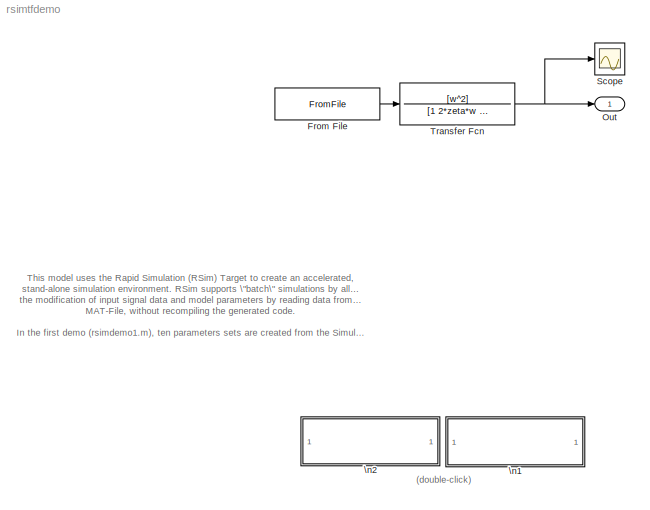
MODEL rsimtfdemo
KIND model
BLOCK [FromFile] From File
  FileName = rsim_tfdata.mat
  SampleTime = 0
BLOCK [Outport] Out
  IconDisplay = Port number
BLOCK [Scope] Scope
  DataFormat = StructureWithTime
  NumInputPorts = 1
  Ports = [1]
BLOCK [TransferFcn] Transfer Fcn
  Denominator = [1  2*zeta*w  w^2]
  Numerator = [w^2]
BLOCK [SubSystem] \n1
  MaskDisplay = disp('Run second demo\\n(rsimdemo2.m)')
  MaskIconFrame = on
  MaskIconOpaque = on
  MaskIconRotate = none
  MaskIconUnits = autoscale
  MinAlgLoopOccurrences = off
  OpenFcn = rsimdemo2;
  Ports = []
  PropExecContextAcrossSSBoundary = on
  RTWSystemCode = Auto
  TreatAsAtomicUnit = off
BLOCK [SubSystem] \n2
  MaskDisplay = disp('Run first demo\\n(rsimdemo1.m)')
  MaskIconFrame = on
  MaskIconOpaque = on
  MaskIconRotate = none
  MaskIconUnits = autoscale
  MinAlgLoopOccurrences = off
  OpenFcn = rsimdemo1;
  Ports = []
  PropExecContextAcrossSSBoundary = on
  RTWSystemCode = Auto
  TreatAsAtomicUnit = off
ANNOTATION (root): (double-click)
ANNOTATION (root): This model uses the Rapid Simulation (RSim) Target to create an accelerated, \nstand-alone simulation environment. RSim supports \"batch\" simulations by allowing\nthe modification of input signal data and model parameters by reading data from a\nMAT-File, without recompiling the generated code.\n\nIn the first demo (rsimdemo1.m), ten parameters sets are created from the Simulink model\nwhile chan...<+531ch>
LINE From File:1 -> Transfer Fcn:1
NET Transfer Fcn:1 -> Out:1, Scope:1
note: NET lines group one-source signal fan-out (src -> all destinations, sorted); 1:1 wires keep LINE
